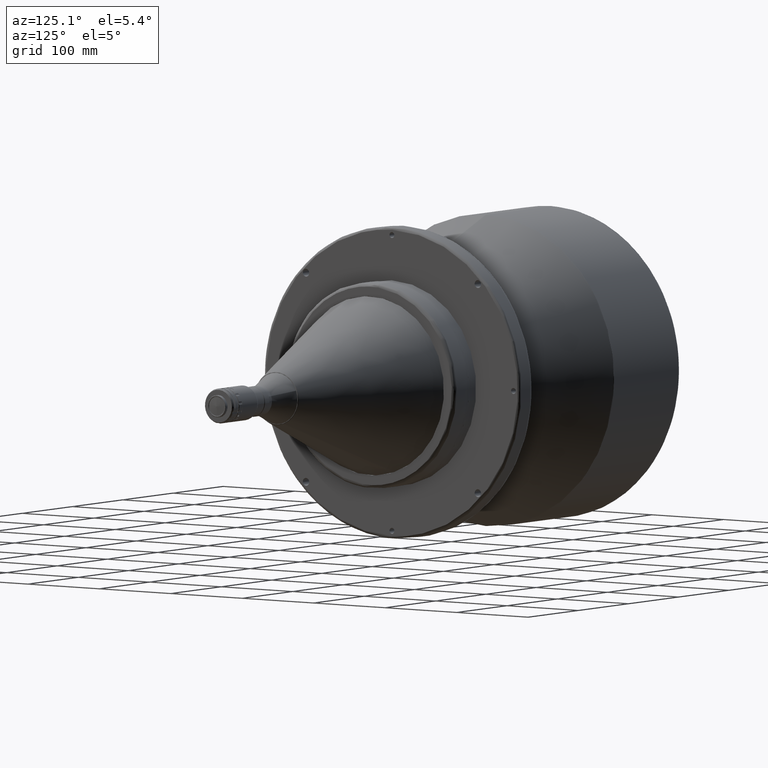
[diagram: clean part render]
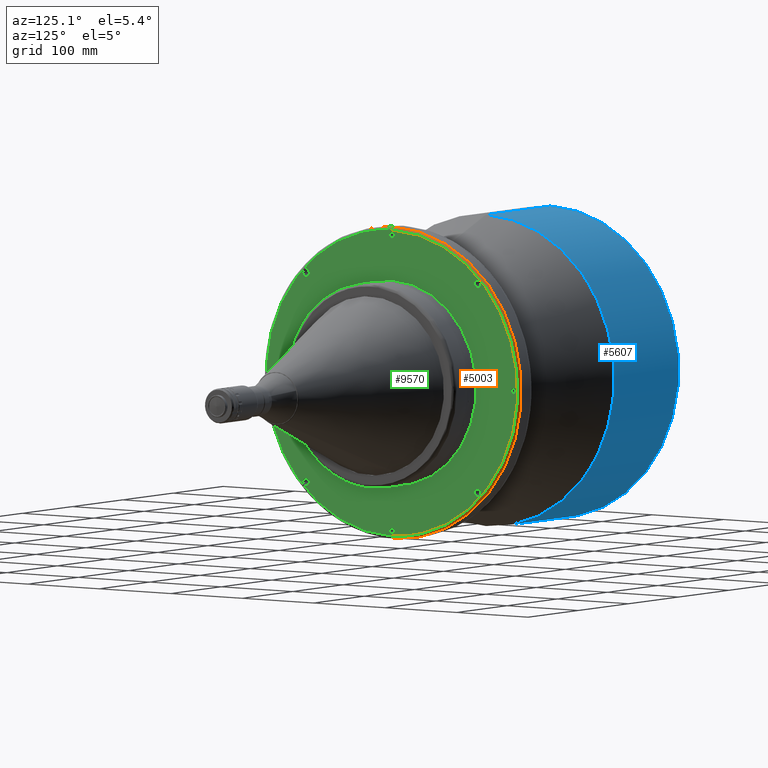
[diagram: same view with three faces highlighted in distinct colors, each labeled with its STEP entity id]
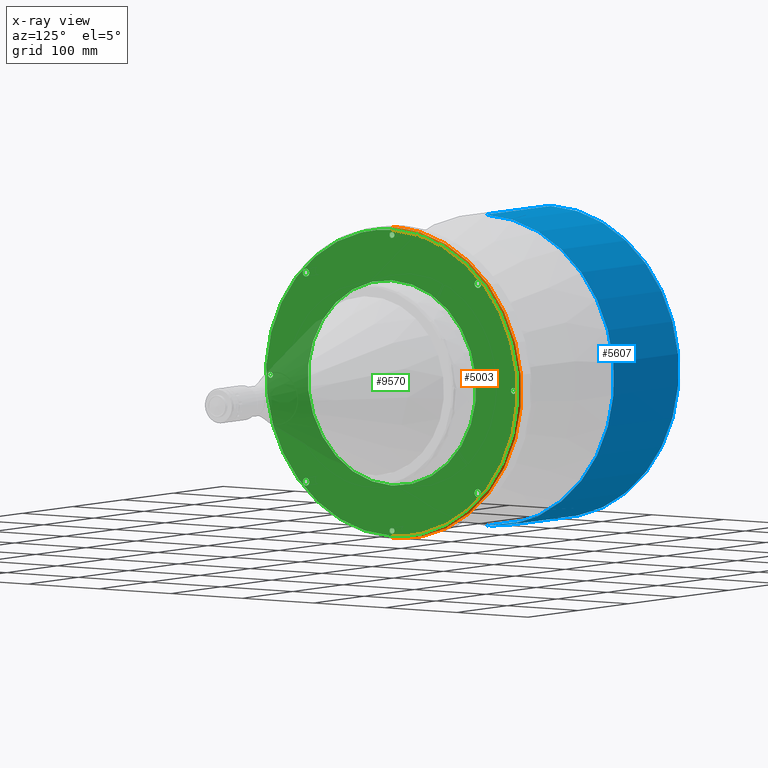
[diagram: x-ray of the same camera — body ghosted, the three highlighted faces saturated]
A machine part, auxiliary view with three faces highlighted in distinct colors.
The next image is the same camera in x-ray (body ghosted, the three faces saturated) — at least one of them is partly hidden behind the body in this view.
Their STEP definitions:

[orange] entity #5003 — the highlighted face is a freeform B-spline surface patch.
#386 = CARTESIAN_POINT ( 'NONE',  ( 317.4850124959999100, 0.0000000000000000000, -175.7004997500000100 ) ) ;
#568 = EDGE_CURVE ( 'NONE', #5651, #1520, #9086, .T. ) ;
#593 = AXIS2_PLACEMENT_3D ( 'NONE', #6037, #2312, #3719 ) ;
#1062 = CARTESIAN_POINT ( 'NONE',  ( 314.2004997500000100, 357.9700249919999400, -178.9850124960000000 ) ) ;
#1075 = EDGE_CURVE ( 'NONE', #6397, #8986, #6852, .T. ) ;
#1127 = CARTESIAN_POINT ( 'NONE',  ( 317.6896612680000100, 355.4803225909999500, -177.7401612959999100 ) ) ;
#1166 = CARTESIAN_POINT ( 'NONE',  ( 317.4850124959999100, 351.4009994999999500, 175.7004997500000300 ) ) ;
#1520 = VERTEX_POINT ( 'NONE', #3394 ) ;
#1701 = CARTESIAN_POINT ( 'NONE',  ( 316.2401612960000000, 0.0000000000000000000, 179.1896612679999500 ) ) ;
#1970 = ORIENTED_EDGE ( 'NONE', *, *, #1075, .T. ) ;
#2042 =( BOUNDED_CURVE ( )  B_SPLINE_CURVE ( 3, ( #7916, #6400, #5709, #7855 ),
 .UNSPECIFIED., .F., .T. ) 
 B_SPLINE_CURVE_WITH_KNOTS ( ( 4, 4 ),
 ( 0.06314145699999232400, 0.9368585430000077000 ),
 .UNSPECIFIED. ) 
 CURVE ( )  GEOMETRIC_REPRESENTATION_ITEM ( )  RATIONAL_B_SPLINE_CURVE ( ( 0.9565783021659983700, 0.7697947703959736600, 0.7697947703959735500, 0.9565783021659982600 ) ) 
 REPRESENTATION_ITEM ( '' )  );
#2097 = ORIENTED_EDGE ( 'NONE', *, *, #4044, .F. ) ;
#2131 = CARTESIAN_POINT ( 'NONE',  ( 317.5000000000733300, 0.0000000000000000000, 175.9999999659239600 ) ) ;
#2247 = FACE_OUTER_BOUND ( 'NONE', #8118, .T. ) ;
#2312 = DIRECTION ( 'NONE',  ( 1.000000000000000000, -0.0000000000000000000, -0.0000000000000000000 ) ) ;
#2498 = CARTESIAN_POINT ( 'NONE',  ( 316.2401612959999400, 358.3793225360000200, 179.1896612679999500 ) ) ;
#2660 = CARTESIAN_POINT ( 'NONE',  ( 317.6896612680000700, 0.0000000000000000000, -177.7401612959999700 ) ) ;
#3227 = CARTESIAN_POINT ( 'NONE',  ( 317.5000000000733300, 0.0000000000000000000, -175.9999999659239600 ) ) ;
#3394 = CARTESIAN_POINT ( 'NONE',  ( 314.5000000003454400, -1.607305948874321200E-008, 179.0000000000305800 ) ) ;
#3468 = CARTESIAN_POINT ( 'NONE',  ( 317.6896612680000700, 0.0000000000000000000, 177.7401612959999700 ) ) ;
#3611 = EDGE_CURVE ( 'NONE', #6397, #1520, #2042, .T. ) ;
#3719 = DIRECTION ( 'NONE',  ( 0.0000000000000000000, 8.881784197001252300E-016, 1.000000000000000000 ) ) ;
#4044 = EDGE_CURVE ( 'NONE', #5651, #8986, #7451, .T. ) ;
#4190 = ORIENTED_EDGE ( 'NONE', *, *, #568, .T. ) ;
#4656 = CARTESIAN_POINT ( 'NONE',  ( 317.5000000000733300, 0.0000000000000000000, -175.9999999659239600 ) ) ;
#4730 = CARTESIAN_POINT ( 'NONE',  ( 317.4999999990893700, 0.0000000000000000000, -177.7573593132306400 ) ) ;
#4782 = CARTESIAN_POINT ( 'NONE',  ( 317.5000000001221600, 352.0000000026986400, -176.0000000014149700 ) ) ;
#4927 = CARTESIAN_POINT ( 'NONE',  ( 317.4850124959999100, 0.0000000000000000000, 175.7004997500000100 ) ) ;
#5003 = ADVANCED_FACE ( 'NONE', ( #2247 ), #8560, .T. ) ;
#5651 = VERTEX_POINT ( 'NONE', #7477 ) ;
#5709 = CARTESIAN_POINT ( 'NONE',  ( 316.2573593132307800, 0.0000000000000000000, 178.9999999990893700 ) ) ;
#6037 = CARTESIAN_POINT ( 'NONE',  ( 314.5000000000000000, 0.0000000000000000000, 0.0000000000000000000 ) ) ;
#6318 = CARTESIAN_POINT ( 'NONE',  ( 314.2004997499999500, 0.0000000000000000000, -178.9850124960000000 ) ) ;
#6397 = VERTEX_POINT ( 'NONE', #2131 ) ;
#6400 = CARTESIAN_POINT ( 'NONE',  ( 317.4999999990894300, 0.0000000000000000000, 177.7573593132306900 ) ) ;
#6475 = CARTESIAN_POINT ( 'NONE',  ( 317.6896612680000100, 355.4803225909999500, 177.7401612959999100 ) ) ;
#6852 =( BOUNDED_CURVE ( )  B_SPLINE_CURVE ( 3, ( #8384, #9216, #4782, #3227 ),
 .UNSPECIFIED., .F., .T. ) 
 B_SPLINE_CURVE_WITH_KNOTS ( ( 4, 4 ),
 ( 0.0000000000000000000, 1.000000000000000000 ),
 .UNSPECIFIED. ) 
 CURVE ( )  GEOMETRIC_REPRESENTATION_ITEM ( )  RATIONAL_B_SPLINE_CURVE ( ( 0.9565783021616163200, 0.3188594340538719000, 0.3188594340538719000, 0.9565783021616163200 ) ) 
 REPRESENTATION_ITEM ( '' )  );
#7451 =( BOUNDED_CURVE ( )  B_SPLINE_CURVE ( 3, ( #7668, #8451, #4730, #4656 ),
 .UNSPECIFIED., .F., .T. ) 
 B_SPLINE_CURVE_WITH_KNOTS ( ( 4, 4 ),
 ( 0.06314145700000561900, 0.9368585430000009300 ),
 .UNSPECIFIED. ) 
 CURVE ( )  GEOMETRIC_REPRESENTATION_ITEM ( )  RATIONAL_B_SPLINE_CURVE ( ( 0.9565783021659897100, 0.7697947703959751000, 0.7697947703959765500, 0.9565783021659939300 ) ) 
 REPRESENTATION_ITEM ( '' )  );
#7477 = CARTESIAN_POINT ( 'NONE',  ( 314.5000000003454400, -5.507027055636640800E-008, -179.0000000000305800 ) ) ;
#7668 = CARTESIAN_POINT ( 'NONE',  ( 314.5000000003454400, -5.507027055636640100E-008, -179.0000000000305800 ) ) ;
#7742 = CARTESIAN_POINT ( 'NONE',  ( 316.2401612959999400, 358.3793225360000200, -179.1896612679999500 ) ) ;
#7855 = CARTESIAN_POINT ( 'NONE',  ( 314.5000000003454400, -1.607305948874321200E-008, 179.0000000000305800 ) ) ;
#7916 = CARTESIAN_POINT ( 'NONE',  ( 317.5000000000733300, 0.0000000000000000000, 175.9999999659239600 ) ) ;
#7927 = CARTESIAN_POINT ( 'NONE',  ( 316.2401612960000000, 0.0000000000000000000, -179.1896612679999500 ) ) ;
#8110 = ORIENTED_EDGE ( 'NONE', *, *, #3611, .F. ) ;
#8118 = EDGE_LOOP ( 'NONE', ( #4190, #8110, #1970, #2097 ) ) ;
#8384 = CARTESIAN_POINT ( 'NONE',  ( 317.5000000000733300, 0.0000000000000000000, 175.9999999659239600 ) ) ;
#8430 = CARTESIAN_POINT ( 'NONE',  ( 314.2004997500000100, 357.9700249919999400, 178.9850124960000000 ) ) ;
#8451 = CARTESIAN_POINT ( 'NONE',  ( 316.2573593132308400, 0.0000000000000000000, -178.9999999990892800 ) ) ;
#8520 = CARTESIAN_POINT ( 'NONE',  ( 314.2004997499999500, 0.0000000000000000000, 178.9850124960000000 ) ) ;
#8560 =( BOUNDED_SURFACE ( )  B_SPLINE_SURFACE ( 3, 3, ( 
 ( #8520, #8430, #1062, #6318 ),
 ( #1701, #2498, #7742, #7927 ),
 ( #3468, #6475, #1127, #2660 ),
 ( #4927, #1166, #9400, #386 ) ),
 .UNSPECIFIED., .F., .F., .T. ) 
 B_SPLINE_SURFACE_WITH_KNOTS ( ( 4, 4 ),
 ( 4, 4 ),
 ( 0.0000000000000000000, 1.000000000000000000 ),
 ( 0.0000000000000000000, 1.000000000000000000 ),
 .UNSPECIFIED. ) 
 GEOMETRIC_REPRESENTATION_ITEM ( )  RATIONAL_B_SPLINE_SURFACE ( (
 ( 1.000000000000000000, 0.3333333333333330400, 0.3333333333333330400, 1.000000000000000000),
 ( 0.7553208711179730800, 0.2517736237059909900, 0.2517736237059909900, 0.7553208711179730800),
 ( 0.7553208711179730800, 0.2517736237059909900, 0.2517736237059909900, 0.7553208711179730800),
 ( 1.000000000000000000, 0.3333333333333330400, 0.3333333333333330400, 1.000000000000000000) ) ) 
 REPRESENTATION_ITEM ( '' )  SURFACE ( )  );
#8737 = CARTESIAN_POINT ( 'NONE',  ( 317.5000000000733300, 0.0000000000000000000, -175.9999999659239600 ) ) ;
#8986 = VERTEX_POINT ( 'NONE', #8737 ) ;
#9086 = CIRCLE ( 'NONE', #593, 178.9999999999999700 ) ;
#9216 = CARTESIAN_POINT ( 'NONE',  ( 317.5000000001221600, 352.0000000026986400, 176.0000000014149700 ) ) ;
#9400 = CARTESIAN_POINT ( 'NONE',  ( 317.4850124959999100, 351.4009994999999500, -175.7004997500000300 ) ) ;

[blue] entity #5607 — the highlighted cylindrical surface (partial cylindrical patch) has radius 179 mm, axis along (-1, 0, 0).
#1002 = CARTESIAN_POINT ( 'NONE',  ( 1.499999999568174500, -8.036529744371605900E-009, 179.0000000000382000 ) ) ;
#1113 = CARTESIAN_POINT ( 'NONE',  ( 1.500000000000000000, 0.0000000000000000000, 0.0000000000000000000 ) ) ;
#1855 = EDGE_CURVE ( 'NONE', #7999, #6194, #3751, .T. ) ;
#2182 = CIRCLE ( 'NONE', #4772, 179.0000000002463000 ) ;
#2193 = DIRECTION ( 'NONE',  ( -1.000000000000000000, 0.0000000000000000000, 0.0000000000000000000 ) ) ;
#3427 = CYLINDRICAL_SURFACE ( 'NONE', #7357, 179.0000000000000000 ) ;
#3702 = DIRECTION ( 'NONE',  ( 0.0000000000000000000, 0.0000000000000000000, 1.000000000000000000 ) ) ;
#3725 = DIRECTION ( 'NONE',  ( 1.000000000000000000, -0.0000000000000000000, -0.0000000000000000000 ) ) ;
#3751 = LINE ( 'NONE', #6120, #4107 ) ;
#3765 = CIRCLE ( 'NONE', #9649, 178.9999999999999700 ) ;
#4107 = VECTOR ( 'NONE', #9045, 1000.000000000000000 ) ;
#4258 = CARTESIAN_POINT ( 'NONE',  ( 130.0000000000000000, 0.0000000000000000000, 0.0000000000000000000 ) ) ;
#4346 = CARTESIAN_POINT ( 'NONE',  ( 129.9999999997413600, 0.0000000000000000000, 0.0000000000000000000 ) ) ;
#4463 = DIRECTION ( 'NONE',  ( 0.0000000000000000000, 0.0000000000000000000, -1.000000000000000000 ) ) ;
#4693 = FACE_OUTER_BOUND ( 'NONE', #5103, .T. ) ;
#4772 = AXIS2_PLACEMENT_3D ( 'NONE', #4346, #3725, #4463 ) ;
#5103 = EDGE_LOOP ( 'NONE', ( #6603, #5886, #5261, #5185 ) ) ;
#5129 = CARTESIAN_POINT ( 'NONE',  ( 129.9999999999353400, -1.607305948874321200E-008, 179.0000000000615600 ) ) ;
#5185 = ORIENTED_EDGE ( 'NONE', *, *, #1855, .F. ) ;
#5261 = ORIENTED_EDGE ( 'NONE', *, *, #5382, .F. ) ;
#5382 = EDGE_CURVE ( 'NONE', #6194, #6611, #3765, .T. ) ;
#5576 = CARTESIAN_POINT ( 'NONE',  ( 130.0000000000000000, 2.192117770473762000E-014, -179.0000000000000000 ) ) ;
#5607 = ADVANCED_FACE ( 'NONE', ( #4693 ), #3427, .T. ) ;
#5886 = ORIENTED_EDGE ( 'NONE', *, *, #7718, .T. ) ;
#6120 = CARTESIAN_POINT ( 'NONE',  ( 130.0000000000000000, 0.0000000000000000000, 179.0000000000000000 ) ) ;
#6194 = VERTEX_POINT ( 'NONE', #1002 ) ;
#6336 = VERTEX_POINT ( 'NONE', #7965 ) ;
#6603 = ORIENTED_EDGE ( 'NONE', *, *, #8282, .F. ) ;
#6611 = VERTEX_POINT ( 'NONE', #9658 ) ;
#7231 = DIRECTION ( 'NONE',  ( -1.000000000000000000, 0.0000000000000000000, 0.0000000000000000000 ) ) ;
#7357 = AXIS2_PLACEMENT_3D ( 'NONE', #4258, #2193, #3702 ) ;
#7718 = EDGE_CURVE ( 'NONE', #6336, #6611, #8612, .T. ) ;
#7941 = DIRECTION ( 'NONE',  ( -1.000000000000000000, 0.0000000000000000000, 0.0000000000000000000 ) ) ;
#7965 = CARTESIAN_POINT ( 'NONE',  ( 129.9999999999030000, -4.589189213030534200E-008, -179.0000000000923700 ) ) ;
#7999 = VERTEX_POINT ( 'NONE', #5129 ) ;
#8282 = EDGE_CURVE ( 'NONE', #6336, #7999, #2182, .T. ) ;
#8493 = VECTOR ( 'NONE', #7231, 1000.000000000000000 ) ;
#8612 = LINE ( 'NONE', #5576, #8493 ) ;
#9045 = DIRECTION ( 'NONE',  ( -1.000000000000000000, 0.0000000000000000000, 0.0000000000000000000 ) ) ;
#9321 = DIRECTION ( 'NONE',  ( 0.0000000000000000000, 0.0000000000000000000, 1.000000000000000000 ) ) ;
#9649 = AXIS2_PLACEMENT_3D ( 'NONE', #1113, #7941, #9321 ) ;
#9658 = CARTESIAN_POINT ( 'NONE',  ( 1.499999999481809400, -1.835675685212213800E-008, -179.0000000000458400 ) ) ;

[green] entity #9570 — the highlighted planar face has unit normal (-1, 0, 0).
#13 = CARTESIAN_POINT ( 'NONE',  ( 317.5000000000000000, -120.2081528019999900, -115.7081528020000000 ) ) ;
#255 = CARTESIAN_POINT ( 'NONE',  ( 317.5000000000000000, 4.163799117101018300E-016, 173.4000000000000300 ) ) ;
#275 = CARTESIAN_POINT ( 'NONE',  ( 317.5000000000000000, 170.0000000000000000, 0.0000000000000000000 ) ) ;
#277 = VERTEX_POINT ( 'NONE', #829 ) ;
#330 = EDGE_CURVE ( 'NONE', #7903, #3928, #4530, .T. ) ;
#411 = FACE_BOUND ( 'NONE', #7090, .T. ) ;
#463 = ORIENTED_EDGE ( 'NONE', *, *, #9174, .F. ) ;
#516 = CARTESIAN_POINT ( 'NONE',  ( 317.5000000000000000, -170.0000000000000000, 0.0000000000000000000 ) ) ;
#563 = CARTESIAN_POINT ( 'NONE',  ( 317.5000000000000000, 120.2081528019999900, 124.7081528020000000 ) ) ;
#601 = ORIENTED_EDGE ( 'NONE', *, *, #5529, .F. ) ;
#610 = EDGE_CURVE ( 'NONE', #8337, #6676, #7613, .T. ) ;
#654 = ORIENTED_EDGE ( 'NONE', *, *, #3518, .F. ) ;
#829 = CARTESIAN_POINT ( 'NONE',  ( 317.5000000000000000, -170.0000000000000000, -3.399999999999999900 ) ) ;
#888 = CIRCLE ( 'NONE', #4060, 4.500000000000003600 ) ;
#929 = ORIENTED_EDGE ( 'NONE', *, *, #1075, .F. ) ;
#985 = DIRECTION ( 'NONE',  ( 1.000000000000000000, 0.0000000000000000000, 0.0000000000000000000 ) ) ;
#989 = AXIS2_PLACEMENT_3D ( 'NONE', #6874, #7521, #3026 ) ;
#993 = AXIS2_PLACEMENT_3D ( 'NONE', #5730, #1209, #9539 ) ;
#1032 = AXIS2_PLACEMENT_3D ( 'NONE', #9199, #4491, #3820 ) ;
#1075 = EDGE_CURVE ( 'NONE', #6397, #8986, #6852, .T. ) ;
#1168 = ORIENTED_EDGE ( 'NONE', *, *, #7527, .F. ) ;
#1209 = DIRECTION ( 'NONE',  ( -1.000000000000000000, 0.0000000000000000000, 0.0000000000000000000 ) ) ;
#1256 = CIRCLE ( 'NONE', #5697, 3.399999999999986100 ) ;
#1265 = EDGE_LOOP ( 'NONE', ( #929, #3436 ) ) ;
#1303 =( BOUNDED_CURVE ( )  B_SPLINE_CURVE ( 3, ( #9476, #7354, #4383, #2861 ),
 .UNSPECIFIED., .F., .F. ) 
 B_SPLINE_CURVE_WITH_KNOTS ( ( 4, 4 ),
 ( 0.0000000000000000000, 1.000000000000000000 ),
 .UNSPECIFIED. ) 
 CURVE ( )  GEOMETRIC_REPRESENTATION_ITEM ( )  RATIONAL_B_SPLINE_CURVE ( ( 0.9565783021616146600, 0.3188594340538712900, 0.3188594340538712900, 0.9565783021616146600 ) ) 
 REPRESENTATION_ITEM ( '' )  );
#1330 = EDGE_LOOP ( 'NONE', ( #2227, #2012 ) ) ;
#1498 = CIRCLE ( 'NONE', #9186, 3.399999999999999900 ) ;
#1517 = DIRECTION ( 'NONE',  ( 1.000000000000000000, 0.0000000000000000000, 0.0000000000000000000 ) ) ;
#1577 = VERTEX_POINT ( 'NONE', #6560 ) ;
#1660 = CARTESIAN_POINT ( 'NONE',  ( 317.5000000000000000, 120.2081528019999900, -124.7081528019999900 ) ) ;
#1678 = VERTEX_POINT ( 'NONE', #3701 ) ;
#1703 = DIRECTION ( 'NONE',  ( 1.000000000000000000, 0.0000000000000000000, 0.0000000000000000000 ) ) ;
#1705 = VERTEX_POINT ( 'NONE', #2138 ) ;
#1736 = VERTEX_POINT ( 'NONE', #5953 ) ;
#1764 = CARTESIAN_POINT ( 'NONE',  ( 317.5000000000000000, 0.0000000000000000000, -170.0000000000000000 ) ) ;
#1815 = DIRECTION ( 'NONE',  ( 1.000000000000000000, 0.0000000000000000000, 0.0000000000000000000 ) ) ;
#1865 = DIRECTION ( 'NONE',  ( 0.0000000000000000000, 0.0000000000000000000, -1.000000000000000000 ) ) ;
#1902 = ORIENTED_EDGE ( 'NONE', *, *, #4400, .F. ) ;
#1939 = FACE_BOUND ( 'NONE', #1330, .T. ) ;
#2012 = ORIENTED_EDGE ( 'NONE', *, *, #5715, .F. ) ;
#2046 = DIRECTION ( 'NONE',  ( 0.0000000000000000000, 0.0000000000000000000, 1.000000000000000000 ) ) ;
#2094 = DIRECTION ( 'NONE',  ( 1.000000000000000000, 0.0000000000000000000, 0.0000000000000000000 ) ) ;
#2131 = CARTESIAN_POINT ( 'NONE',  ( 317.5000000000733300, 0.0000000000000000000, 175.9999999659239600 ) ) ;
#2138 = CARTESIAN_POINT ( 'NONE',  ( 317.5000000000000000, -120.2081528019999900, 124.7081528020000000 ) ) ;
#2227 = ORIENTED_EDGE ( 'NONE', *, *, #3019, .F. ) ;
#2280 = CIRCLE ( 'NONE', #7199, 118.0000000000000100 ) ;
#2341 = AXIS2_PLACEMENT_3D ( 'NONE', #8126, #3667, #3574 ) ;
#2419 = EDGE_CURVE ( 'NONE', #1678, #6425, #7867, .T. ) ;
#2423 = VERTEX_POINT ( 'NONE', #8032 ) ;
#2439 = EDGE_CURVE ( 'NONE', #8986, #6397, #1303, .T. ) ;
#2487 = CIRCLE ( 'NONE', #9701, 4.499999999999990200 ) ;
#2534 = DIRECTION ( 'NONE',  ( 1.000000000000000000, -0.0000000000000000000, 0.0000000000000000000 ) ) ;
#2582 = EDGE_CURVE ( 'NONE', #5250, #7391, #7858, .T. ) ;
#2595 = EDGE_LOOP ( 'NONE', ( #9229, #601 ) ) ;
#2607 = EDGE_LOOP ( 'NONE', ( #5751, #654 ) ) ;
#2646 = ORIENTED_EDGE ( 'NONE', *, *, #330, .F. ) ;
#2861 = CARTESIAN_POINT ( 'NONE',  ( 317.5000000000733300, 0.0000000000000000000, 175.9999999659239600 ) ) ;
#2902 = CIRCLE ( 'NONE', #5572, 4.499999999999990200 ) ;
#2910 = CARTESIAN_POINT ( 'NONE',  ( 317.5000000000000000, 120.2081528019999900, -115.7081528020000000 ) ) ;
#2955 = CIRCLE ( 'NONE', #5000, 118.0000000000000100 ) ;
#2974 = ORIENTED_EDGE ( 'NONE', *, *, #2419, .F. ) ;
#3019 = EDGE_CURVE ( 'NONE', #277, #2423, #1498, .T. ) ;
#3026 = DIRECTION ( 'NONE',  ( 0.0000000000000000000, 0.0000000000000000000, -1.000000000000000000 ) ) ;
#3108 = FACE_OUTER_BOUND ( 'NONE', #1265, .T. ) ;
#3227 = CARTESIAN_POINT ( 'NONE',  ( 317.5000000000733300, 0.0000000000000000000, -175.9999999659239600 ) ) ;
#3262 = AXIS2_PLACEMENT_3D ( 'NONE', #5463, #4720, #7725 ) ;
#3304 = EDGE_CURVE ( 'NONE', #1736, #5014, #1256, .T. ) ;
#3436 = ORIENTED_EDGE ( 'NONE', *, *, #2439, .F. ) ;
#3475 = PLANE ( 'NONE',  #993 ) ;
#3518 = EDGE_CURVE ( 'NONE', #1705, #4559, #6911, .T. ) ;
#3527 = CARTESIAN_POINT ( 'NONE',  ( 317.5000000000000000, 4.163799117100984300E-016, -166.6000000000000200 ) ) ;
#3565 = DIRECTION ( 'NONE',  ( 0.0000000000000000000, 0.0000000000000000000, -1.000000000000000000 ) ) ;
#3574 = DIRECTION ( 'NONE',  ( 0.0000000000000000000, 0.0000000000000000000, -1.000000000000000000 ) ) ;
#3579 = FACE_BOUND ( 'NONE', #8552, .T. ) ;
#3599 = AXIS2_PLACEMENT_3D ( 'NONE', #275, #985, #6276 ) ;
#3608 = CARTESIAN_POINT ( 'NONE',  ( 317.5000000000000000, -120.2081528019999900, -120.2081528019999900 ) ) ;
#3667 = DIRECTION ( 'NONE',  ( 1.000000000000000000, 0.0000000000000000000, 0.0000000000000000000 ) ) ;
#3701 = CARTESIAN_POINT ( 'NONE',  ( 317.5000000000000000, 0.0000000000000000000, 166.5999999999999900 ) ) ;
#3780 = CARTESIAN_POINT ( 'NONE',  ( 317.5000000000000000, 1.445083222993877000E-014, -118.0000000000000100 ) ) ;
#3820 = DIRECTION ( 'NONE',  ( 0.0000000000000000000, 0.0000000000000000000, -1.000000000000000000 ) ) ;
#3912 = ORIENTED_EDGE ( 'NONE', *, *, #610, .F. ) ;
#3928 = VERTEX_POINT ( 'NONE', #6543 ) ;
#3979 = EDGE_LOOP ( 'NONE', ( #463, #4138 ) ) ;
#4060 = AXIS2_PLACEMENT_3D ( 'NONE', #8508, #4691, #7800 ) ;
#4138 = ORIENTED_EDGE ( 'NONE', *, *, #2582, .F. ) ;
#4154 = FACE_BOUND ( 'NONE', #2607, .T. ) ;
#4228 = CARTESIAN_POINT ( 'NONE',  ( 317.5000000000000000, 170.0000000000000000, 0.0000000000000000000 ) ) ;
#4283 = DIRECTION ( 'NONE',  ( 0.0000000000000000000, 0.0000000000000000000, -1.000000000000000000 ) ) ;
#4334 = VERTEX_POINT ( 'NONE', #3780 ) ;
#4383 = CARTESIAN_POINT ( 'NONE',  ( 317.5000000001222100, -352.0000000026986400, 176.0000000014150000 ) ) ;
#4400 = EDGE_CURVE ( 'NONE', #6676, #8337, #2902, .T. ) ;
#4491 = DIRECTION ( 'NONE',  ( 1.000000000000000000, 0.0000000000000000000, 0.0000000000000000000 ) ) ;
#4500 = AXIS2_PLACEMENT_3D ( 'NONE', #8376, #1703, #8341 ) ;
#4530 = CIRCLE ( 'NONE', #6821, 4.500000000000003600 ) ;
#4559 = VERTEX_POINT ( 'NONE', #9511 ) ;
#4567 = CIRCLE ( 'NONE', #4500, 3.399999999999999900 ) ;
#4616 = FACE_BOUND ( 'NONE', #5818, .T. ) ;
#4658 = DIRECTION ( 'NONE',  ( 1.000000000000000000, 0.0000000000000000000, 0.0000000000000000000 ) ) ;
#4691 = DIRECTION ( 'NONE',  ( 1.000000000000000000, -0.0000000000000000000, 0.0000000000000000000 ) ) ;
#4720 = DIRECTION ( 'NONE',  ( 1.000000000000000000, -0.0000000000000000000, 0.0000000000000000000 ) ) ;
#4723 = EDGE_LOOP ( 'NONE', ( #7092, #7452 ) ) ;
#4782 = CARTESIAN_POINT ( 'NONE',  ( 317.5000000001221600, 352.0000000026986400, -176.0000000014149700 ) ) ;
#4837 = CARTESIAN_POINT ( 'NONE',  ( 317.5000000000000000, 0.0000000000000000000, -170.0000000000000000 ) ) ;
#5000 = AXIS2_PLACEMENT_3D ( 'NONE', #6220, #9180, #9276 ) ;
#5014 = VERTEX_POINT ( 'NONE', #3527 ) ;
#5023 = VERTEX_POINT ( 'NONE', #5786 ) ;
#5250 = VERTEX_POINT ( 'NONE', #6801 ) ;
#5289 = EDGE_CURVE ( 'NONE', #4559, #1705, #7303, .T. ) ;
#5366 = CARTESIAN_POINT ( 'NONE',  ( 317.5000000000000000, 170.0000000000000000, -3.399999999999999900 ) ) ;
#5396 = CARTESIAN_POINT ( 'NONE',  ( 317.5000000000000000, 120.2081528019999900, -120.2081528019999900 ) ) ;
#5457 = DIRECTION ( 'NONE',  ( 0.0000000000000000000, 0.0000000000000000000, -1.000000000000000000 ) ) ;
#5463 = CARTESIAN_POINT ( 'NONE',  ( 317.5000000000000000, -120.2081528019999900, 120.2081528019999900 ) ) ;
#5529 = EDGE_CURVE ( 'NONE', #8009, #5023, #2487, .T. ) ;
#5572 = AXIS2_PLACEMENT_3D ( 'NONE', #5396, #1815, #5457 ) ;
#5697 = AXIS2_PLACEMENT_3D ( 'NONE', #4837, #4658, #1865 ) ;
#5715 = EDGE_CURVE ( 'NONE', #2423, #277, #4567, .T. ) ;
#5730 = CARTESIAN_POINT ( 'NONE',  ( 317.5000000000000000, -178.1119999999999900, -178.1119999999999900 ) ) ;
#5740 = DIRECTION ( 'NONE',  ( 0.0000000000000000000, 0.0000000000000000000, -1.000000000000000000 ) ) ;
#5751 = ORIENTED_EDGE ( 'NONE', *, *, #5289, .F. ) ;
#5755 = AXIS2_PLACEMENT_3D ( 'NONE', #8028, #7374, #4283 ) ;
#5786 = CARTESIAN_POINT ( 'NONE',  ( 317.5000000000000000, -120.2081528019999900, -124.7081528019999900 ) ) ;
#5818 = EDGE_LOOP ( 'NONE', ( #1168, #2646 ) ) ;
#5824 = EDGE_CURVE ( 'NONE', #1577, #4334, #2955, .T. ) ;
#5849 = EDGE_LOOP ( 'NONE', ( #7636, #6031 ) ) ;
#5908 = CARTESIAN_POINT ( 'NONE',  ( 317.5000000000000000, 0.0000000000000000000, 0.0000000000000000000 ) ) ;
#5953 = CARTESIAN_POINT ( 'NONE',  ( 317.5000000000000000, 0.0000000000000000000, -173.4000000000000100 ) ) ;
#6030 = FACE_BOUND ( 'NONE', #5849, .T. ) ;
#6031 = ORIENTED_EDGE ( 'NONE', *, *, #6678, .F. ) ;
#6220 = CARTESIAN_POINT ( 'NONE',  ( 317.5000000000000000, 0.0000000000000000000, 0.0000000000000000000 ) ) ;
#6248 = DIRECTION ( 'NONE',  ( 0.0000000000000000000, 0.0000000000000000000, -1.000000000000000000 ) ) ;
#6276 = DIRECTION ( 'NONE',  ( 0.0000000000000000000, 0.0000000000000000000, -1.000000000000000000 ) ) ;
#6397 = VERTEX_POINT ( 'NONE', #2131 ) ;
#6425 = VERTEX_POINT ( 'NONE', #255 ) ;
#6526 = DIRECTION ( 'NONE',  ( 0.0000000000000000000, 0.0000000000000000000, -1.000000000000000000 ) ) ;
#6543 = CARTESIAN_POINT ( 'NONE',  ( 317.5000000000000000, 120.2081528019999900, 115.7081528019999900 ) ) ;
#6560 = CARTESIAN_POINT ( 'NONE',  ( 317.5000000000000000, 0.0000000000000000000, 118.0000000000000100 ) ) ;
#6658 = CIRCLE ( 'NONE', #5755, 3.400000000000014100 ) ;
#6676 = VERTEX_POINT ( 'NONE', #2910 ) ;
#6678 = EDGE_CURVE ( 'NONE', #4334, #1577, #2280, .T. ) ;
#6777 = CARTESIAN_POINT ( 'NONE',  ( 317.5000000000000000, -120.2081528019999900, -120.2081528019999900 ) ) ;
#6801 = CARTESIAN_POINT ( 'NONE',  ( 317.5000000000000000, 170.0000000000000000, 3.399999999999999900 ) ) ;
#6821 = AXIS2_PLACEMENT_3D ( 'NONE', #7775, #2534, #6248 ) ;
#6852 =( BOUNDED_CURVE ( )  B_SPLINE_CURVE ( 3, ( #8384, #9216, #4782, #3227 ),
 .UNSPECIFIED., .F., .T. ) 
 B_SPLINE_CURVE_WITH_KNOTS ( ( 4, 4 ),
 ( 0.0000000000000000000, 1.000000000000000000 ),
 .UNSPECIFIED. ) 
 CURVE ( )  GEOMETRIC_REPRESENTATION_ITEM ( )  RATIONAL_B_SPLINE_CURVE ( ( 0.9565783021616163200, 0.3188594340538719000, 0.3188594340538719000, 0.9565783021616163200 ) ) 
 REPRESENTATION_ITEM ( '' )  );
#6874 = CARTESIAN_POINT ( 'NONE',  ( 317.5000000000000000, -120.2081528019999900, 120.2081528019999900 ) ) ;
#6880 = DIRECTION ( 'NONE',  ( 0.0000000000000000000, 0.0000000000000000000, -1.000000000000000000 ) ) ;
#6911 = CIRCLE ( 'NONE', #3262, 4.500000000000003600 ) ;
#7090 = EDGE_LOOP ( 'NONE', ( #3912, #1902 ) ) ;
#7092 = ORIENTED_EDGE ( 'NONE', *, *, #3304, .F. ) ;
#7110 = FACE_BOUND ( 'NONE', #4723, .T. ) ;
#7199 = AXIS2_PLACEMENT_3D ( 'NONE', #5908, #9550, #2046 ) ;
#7220 = FACE_BOUND ( 'NONE', #2595, .T. ) ;
#7295 = DIRECTION ( 'NONE',  ( 1.000000000000000000, 0.0000000000000000000, 0.0000000000000000000 ) ) ;
#7303 = CIRCLE ( 'NONE', #989, 4.500000000000003600 ) ;
#7305 = EDGE_CURVE ( 'NONE', #6425, #1678, #6658, .T. ) ;
#7354 = CARTESIAN_POINT ( 'NONE',  ( 317.5000000001222100, -352.0000000026986400, -176.0000000014150000 ) ) ;
#7374 = DIRECTION ( 'NONE',  ( 1.000000000000000000, 0.0000000000000000000, 0.0000000000000000000 ) ) ;
#7391 = VERTEX_POINT ( 'NONE', #5366 ) ;
#7404 = EDGE_CURVE ( 'NONE', #5023, #8009, #8058, .T. ) ;
#7452 = ORIENTED_EDGE ( 'NONE', *, *, #9275, .F. ) ;
#7521 = DIRECTION ( 'NONE',  ( 1.000000000000000000, -0.0000000000000000000, 0.0000000000000000000 ) ) ;
#7527 = EDGE_CURVE ( 'NONE', #3928, #7903, #888, .T. ) ;
#7613 = CIRCLE ( 'NONE', #1032, 4.499999999999990200 ) ;
#7636 = ORIENTED_EDGE ( 'NONE', *, *, #5824, .F. ) ;
#7688 = CIRCLE ( 'NONE', #7939, 3.399999999999986100 ) ;
#7725 = DIRECTION ( 'NONE',  ( 0.0000000000000000000, 0.0000000000000000000, -1.000000000000000000 ) ) ;
#7775 = CARTESIAN_POINT ( 'NONE',  ( 317.5000000000000000, 120.2081528019999900, 120.2081528019999900 ) ) ;
#7776 = DIRECTION ( 'NONE',  ( 1.000000000000000000, 0.0000000000000000000, 0.0000000000000000000 ) ) ;
#7800 = DIRECTION ( 'NONE',  ( 0.0000000000000000000, 0.0000000000000000000, -1.000000000000000000 ) ) ;
#7858 = CIRCLE ( 'NONE', #8494, 3.399999999999999900 ) ;
#7867 = CIRCLE ( 'NONE', #2341, 3.400000000000014100 ) ;
#7903 = VERTEX_POINT ( 'NONE', #563 ) ;
#7914 = DIRECTION ( 'NONE',  ( 1.000000000000000000, 0.0000000000000000000, 0.0000000000000000000 ) ) ;
#7939 = AXIS2_PLACEMENT_3D ( 'NONE', #1764, #7776, #8483 ) ;
#8009 = VERTEX_POINT ( 'NONE', #13 ) ;
#8028 = CARTESIAN_POINT ( 'NONE',  ( 317.5000000000000000, 0.0000000000000000000, 170.0000000000000000 ) ) ;
#8032 = CARTESIAN_POINT ( 'NONE',  ( 317.5000000000000000, -170.0000000000000000, 3.399999999999999900 ) ) ;
#8058 = CIRCLE ( 'NONE', #9245, 4.499999999999990200 ) ;
#8126 = CARTESIAN_POINT ( 'NONE',  ( 317.5000000000000000, 0.0000000000000000000, 170.0000000000000000 ) ) ;
#8337 = VERTEX_POINT ( 'NONE', #1660 ) ;
#8341 = DIRECTION ( 'NONE',  ( 0.0000000000000000000, 0.0000000000000000000, -1.000000000000000000 ) ) ;
#8376 = CARTESIAN_POINT ( 'NONE',  ( 317.5000000000000000, -170.0000000000000000, 0.0000000000000000000 ) ) ;
#8384 = CARTESIAN_POINT ( 'NONE',  ( 317.5000000000733300, 0.0000000000000000000, 175.9999999659239600 ) ) ;
#8483 = DIRECTION ( 'NONE',  ( 0.0000000000000000000, 0.0000000000000000000, -1.000000000000000000 ) ) ;
#8494 = AXIS2_PLACEMENT_3D ( 'NONE', #4228, #7914, #5740 ) ;
#8508 = CARTESIAN_POINT ( 'NONE',  ( 317.5000000000000000, 120.2081528019999900, 120.2081528019999900 ) ) ;
#8552 = EDGE_LOOP ( 'NONE', ( #2974, #9058 ) ) ;
#8595 = FACE_BOUND ( 'NONE', #3979, .T. ) ;
#8737 = CARTESIAN_POINT ( 'NONE',  ( 317.5000000000733300, 0.0000000000000000000, -175.9999999659239600 ) ) ;
#8986 = VERTEX_POINT ( 'NONE', #8737 ) ;
#9058 = ORIENTED_EDGE ( 'NONE', *, *, #7305, .F. ) ;
#9174 = EDGE_CURVE ( 'NONE', #7391, #5250, #9184, .T. ) ;
#9180 = DIRECTION ( 'NONE',  ( 1.000000000000000000, -0.0000000000000000000, -0.0000000000000000000 ) ) ;
#9184 = CIRCLE ( 'NONE', #3599, 3.399999999999999900 ) ;
#9186 = AXIS2_PLACEMENT_3D ( 'NONE', #516, #2094, #3565 ) ;
#9199 = CARTESIAN_POINT ( 'NONE',  ( 317.5000000000000000, 120.2081528019999900, -120.2081528019999900 ) ) ;
#9216 = CARTESIAN_POINT ( 'NONE',  ( 317.5000000001221600, 352.0000000026986400, 176.0000000014149700 ) ) ;
#9229 = ORIENTED_EDGE ( 'NONE', *, *, #7404, .F. ) ;
#9245 = AXIS2_PLACEMENT_3D ( 'NONE', #6777, #1517, #6880 ) ;
#9275 = EDGE_CURVE ( 'NONE', #5014, #1736, #7688, .T. ) ;
#9276 = DIRECTION ( 'NONE',  ( 0.0000000000000000000, 0.0000000000000000000, 1.000000000000000000 ) ) ;
#9476 = CARTESIAN_POINT ( 'NONE',  ( 317.5000000000733300, 0.0000000000000000000, -175.9999999659239600 ) ) ;
#9511 = CARTESIAN_POINT ( 'NONE',  ( 317.5000000000000000, -120.2081528019999900, 115.7081528019999900 ) ) ;
#9539 = DIRECTION ( 'NONE',  ( 0.0000000000000000000, 0.0000000000000000000, 1.000000000000000000 ) ) ;
#9550 = DIRECTION ( 'NONE',  ( 1.000000000000000000, -0.0000000000000000000, -0.0000000000000000000 ) ) ;
#9570 = ADVANCED_FACE ( 'NONE', ( #8595, #6030, #7110, #1939, #3579, #411, #7220, #4154, #4616, #3108 ), #3475, .F. ) ;
#9701 = AXIS2_PLACEMENT_3D ( 'NONE', #3608, #7295, #6526 ) ;